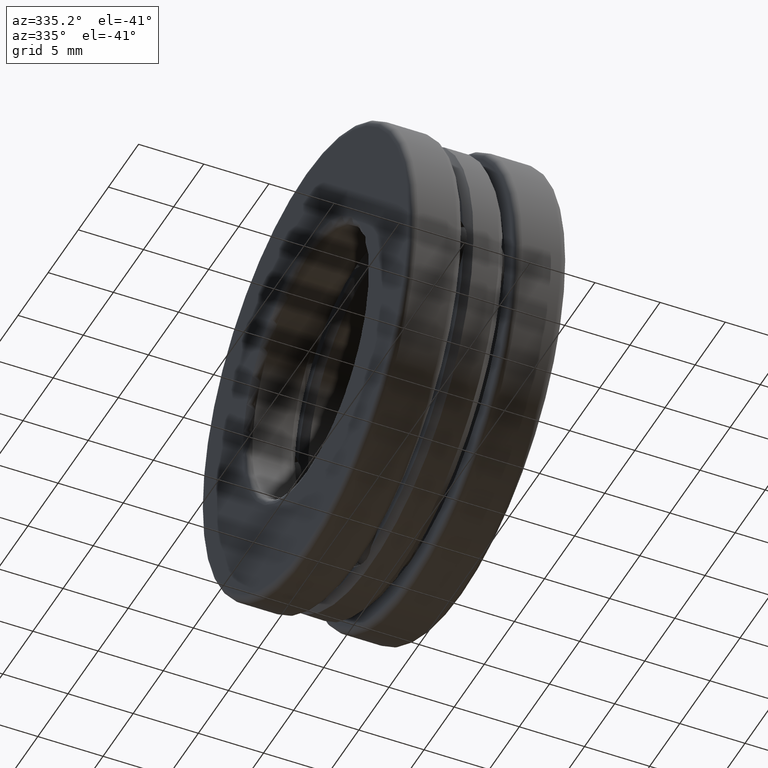
[diagram: clean part render]
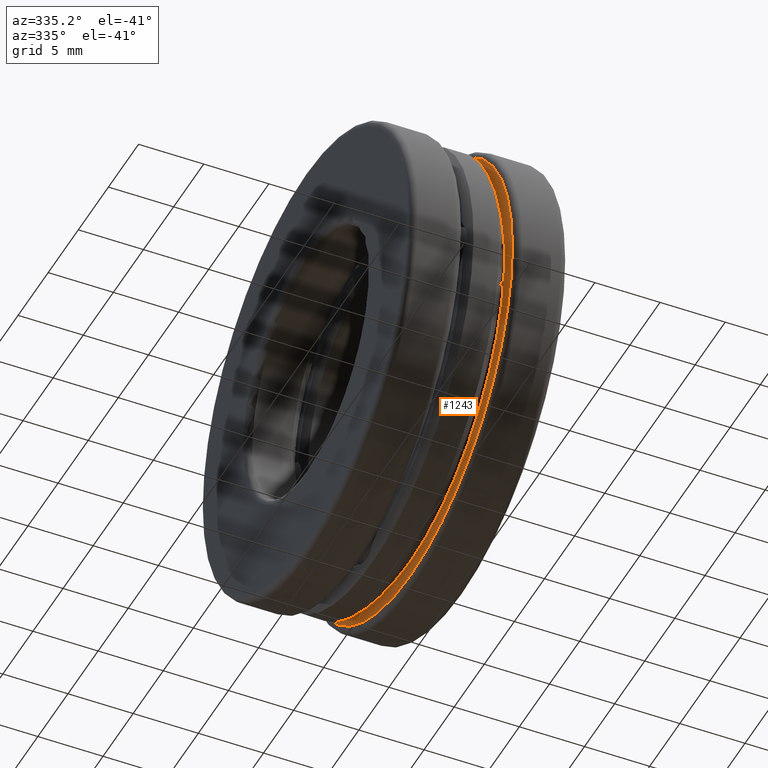
[diagram: same view with one face highlighted and labeled with its STEP entity id]
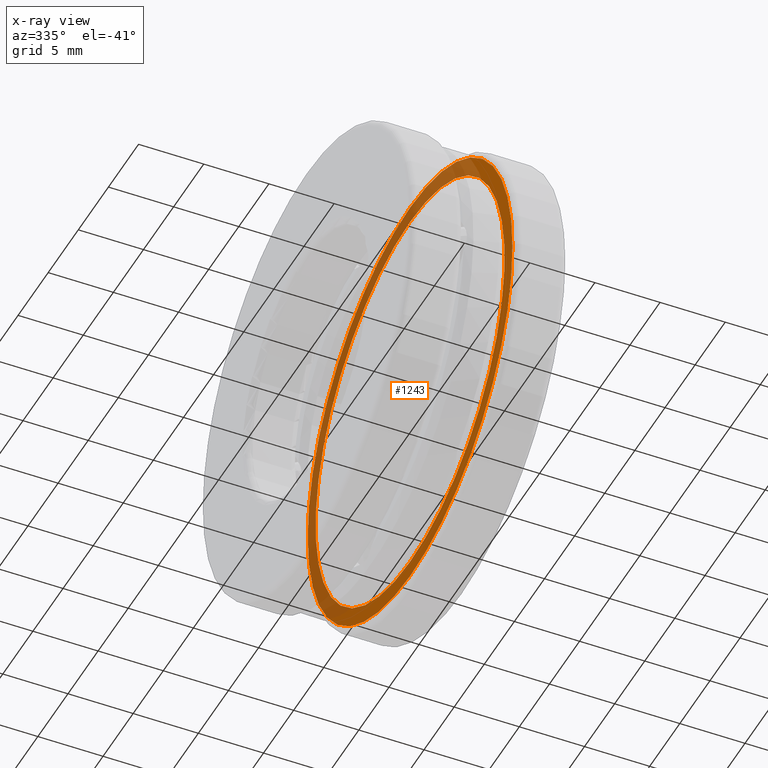
[diagram: x-ray of the same camera — body ghosted, the highlighted face saturated]
A machine part, auxiliary view. The second image highlights one B-rep face of the part: STEP entity #1243.
The next image is the same camera in x-ray: the body ghosted, the highlighted face saturated — about 49% of this face is hidden behind the body in this view.
In plain terms, the highlighted planar face has unit normal (1, 0, 0).
Its self-contained STEP definition (entity closure, byte-faithful):
#44 = AXIS2_PLACEMENT_3D ( 'NONE', #675, #1175, #580 ) ;
#58 = CARTESIAN_POINT ( 'NONE',  ( 0.07866824000000030600, 0.0000000000000000000, 0.6174179592433874900 ) ) ;
#90 = ORIENTED_EDGE ( 'NONE', *, *, #312, .F. ) ;
#104 = PLANE ( 'NONE',  #624 ) ;
#190 = DIRECTION ( 'NONE',  ( -1.000000000000000000, -0.0000000000000000000, -0.0000000000000000000 ) ) ;
#206 = CARTESIAN_POINT ( 'NONE',  ( 0.07866824000000029200, 2.102834379736789200E-017, 0.0000000000000000000 ) ) ;
#214 = VERTEX_POINT ( 'NONE', #58 ) ;
#251 = AXIS2_PLACEMENT_3D ( 'NONE', #1176, #190, #1171 ) ;
#312 = EDGE_CURVE ( 'NONE', #214, #214, #695, .T. ) ;
#338 = FACE_BOUND ( 'NONE', #547, .T. ) ;
#371 = FACE_OUTER_BOUND ( 'NONE', #615, .T. ) ;
#547 = EDGE_LOOP ( 'NONE', ( #90 ) ) ;
#580 = DIRECTION ( 'NONE',  ( 0.0000000000000000000, 0.0000000000000000000, 1.000000000000000000 ) ) ;
#615 = EDGE_LOOP ( 'NONE', ( #721 ) ) ;
#624 = AXIS2_PLACEMENT_3D ( 'NONE', #206, #801, #889 ) ;
#669 = CARTESIAN_POINT ( 'NONE',  ( 0.07866824000000029200, 0.0000000000000000000, 0.6690000000000001500 ) ) ;
#675 = CARTESIAN_POINT ( 'NONE',  ( 0.07866824000000030600, 0.0000000000000000000, 0.0000000000000000000 ) ) ;
#695 = CIRCLE ( 'NONE', #44, 0.6174179592433874900 ) ;
#721 = ORIENTED_EDGE ( 'NONE', *, *, #1198, .T. ) ;
#801 = DIRECTION ( 'NONE',  ( 1.000000000000000000, 0.0000000000000000000, 0.0000000000000000000 ) ) ;
#889 = DIRECTION ( 'NONE',  ( 0.0000000000000000000, 0.0000000000000000000, -1.000000000000000000 ) ) ;
#910 = CIRCLE ( 'NONE', #251, 0.6690000000000001500 ) ;
#1112 = VERTEX_POINT ( 'NONE', #669 ) ;
#1171 = DIRECTION ( 'NONE',  ( 0.0000000000000000000, 0.0000000000000000000, 1.000000000000000000 ) ) ;
#1175 = DIRECTION ( 'NONE',  ( -1.000000000000000000, -0.0000000000000000000, -0.0000000000000000000 ) ) ;
#1176 = CARTESIAN_POINT ( 'NONE',  ( 0.07866824000000029200, 0.0000000000000000000, 0.0000000000000000000 ) ) ;
#1198 = EDGE_CURVE ( 'NONE', #1112, #1112, #910, .T. ) ;
#1243 = ADVANCED_FACE ( 'NONE', ( #338, #371 ), #104, .F. ) ;